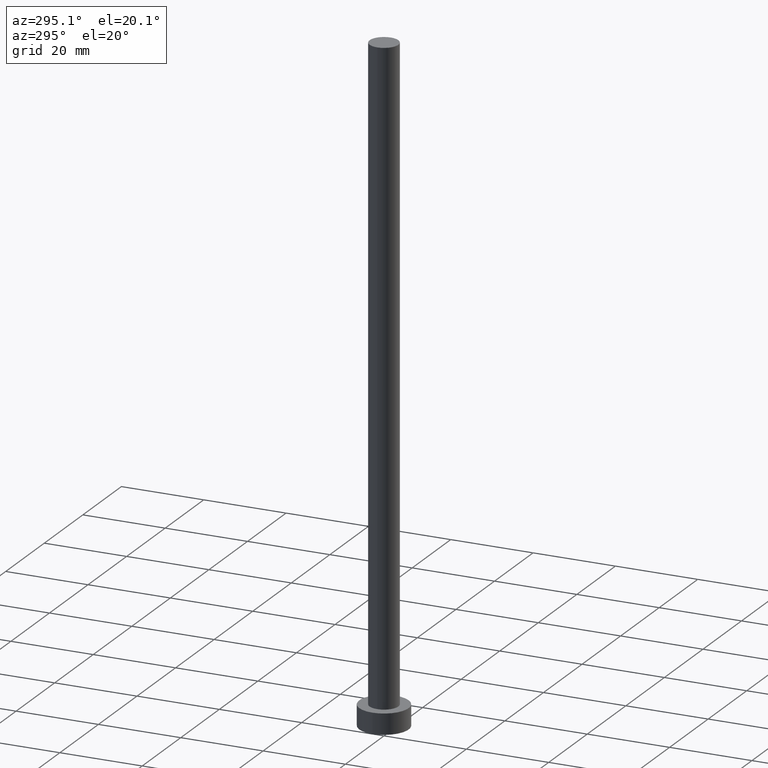
[diagram: clean part render]
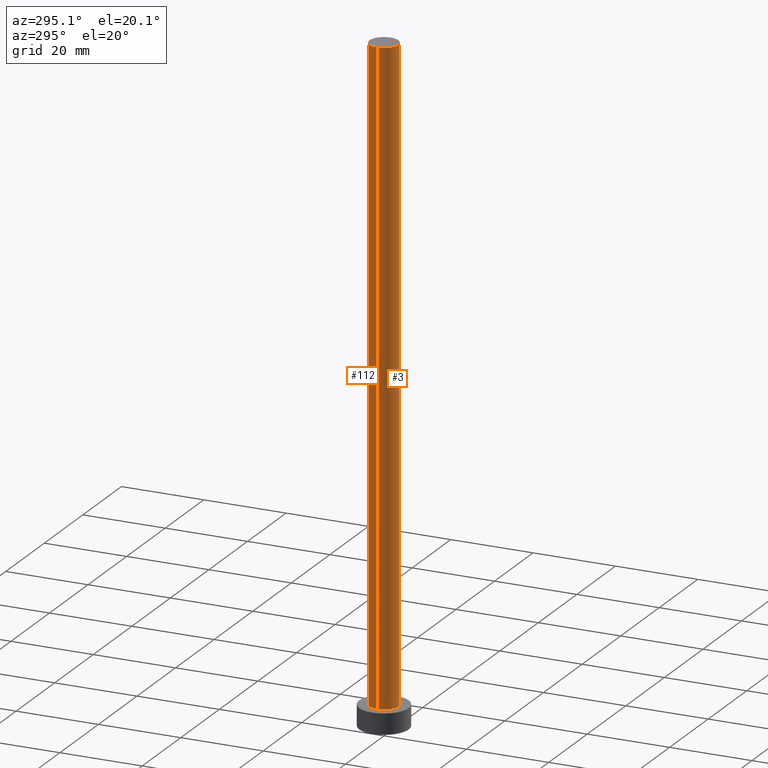
[diagram: same view with one multi-face feature highlighted, each face labeled with its STEP entity id]
A machine part, auxiliary view. The highlighted faces form ONE feature: a constant-radius fillet chain: 2 tangent blend faces with common blend radius 3.5 mm. The faces share edges in the B-rep.
Their STEP definitions:
[1] entity #112 (Cylinder):
#4 = DIRECTION ( 'NONE',  ( 0.000000000000000000, 0.000000000000000000, 1.000000000000000000 ) ) ;
#8 = CARTESIAN_POINT ( 'NONE',  ( -3.500000000000000000, 0.000000000000000000, 5.000000000000000000 ) ) ;
#9 = DIRECTION ( 'NONE',  ( -0.000000000000000000, -0.000000000000000000, -1.000000000000000000 ) ) ;
#11 = CARTESIAN_POINT ( 'NONE',  ( 3.500000000000000000, 4.286263797015736595E-16, 5.000000000000000000 ) ) ;
#25 = CARTESIAN_POINT ( 'NONE',  ( 3.500000000000000000, 4.286263797015736595E-16, 160.0000000000000000 ) ) ;
#46 = CARTESIAN_POINT ( 'NONE',  ( 0.000000000000000000, 0.000000000000000000, 160.0000000000000000 ) ) ;
#54 = VERTEX_POINT ( 'NONE', #8 ) ;
#56 = AXIS2_PLACEMENT_3D ( 'NONE', #243, #4, #141 ) ;
#60 = VERTEX_POINT ( 'NONE', #159 ) ;
#61 = AXIS2_PLACEMENT_3D ( 'NONE', #91, #114, #226 ) ;
#68 = FACE_OUTER_BOUND ( 'NONE', #216, .T. ) ;
#72 = LINE ( 'NONE', #206, #235 ) ;
#77 = ORIENTED_EDGE ( 'NONE', *, *, #142, .F. ) ;
#91 = CARTESIAN_POINT ( 'NONE',  ( 0.000000000000000000, 0.000000000000000000, 5.000000000000000000 ) ) ;
#93 = AXIS2_PLACEMENT_3D ( 'NONE', #46, #248, #160 ) ;
#99 = DIRECTION ( 'NONE',  ( -0.000000000000000000, -0.000000000000000000, -1.000000000000000000 ) ) ;
#107 = VERTEX_POINT ( 'NONE', #11 ) ;
#112 = ADVANCED_FACE ( 'NONE', ( #68 ), #224, .T. ) ;
#114 = DIRECTION ( 'NONE',  ( 0.000000000000000000, 0.000000000000000000, 1.000000000000000000 ) ) ;
#115 = CIRCLE ( 'NONE', #56, 3.500000000000000000 ) ;
#117 = EDGE_CURVE ( 'NONE', #60, #54, #143, .T. ) ;
#124 = ORIENTED_EDGE ( 'NONE', *, *, #189, .T. ) ;
#141 = DIRECTION ( 'NONE',  ( 1.000000000000000000, 0.000000000000000000, 0.000000000000000000 ) ) ;
#142 = EDGE_CURVE ( 'NONE', #220, #60, #115, .T. ) ;
#143 = LINE ( 'NONE', #150, #202 ) ;
#149 = ORIENTED_EDGE ( 'NONE', *, *, #117, .F. ) ;
#150 = CARTESIAN_POINT ( 'NONE',  ( -3.500000000000000000, 0.000000000000000000, 160.0000000000000000 ) ) ;
#159 = CARTESIAN_POINT ( 'NONE',  ( -3.500000000000000000, 0.000000000000000000, 160.0000000000000000 ) ) ;
#160 = DIRECTION ( 'NONE',  ( -1.000000000000000000, 0.000000000000000000, 0.000000000000000000 ) ) ;
#168 = CIRCLE ( 'NONE', #61, 3.500000000000000000 ) ;
#182 = EDGE_CURVE ( 'NONE', #107, #54, #168, .T. ) ;
#189 = EDGE_CURVE ( 'NONE', #220, #107, #72, .T. ) ;
#202 = VECTOR ( 'NONE', #99, 1000.000000000000000 ) ;
#206 = CARTESIAN_POINT ( 'NONE',  ( 3.500000000000000000, 4.286263797015736595E-16, 160.0000000000000000 ) ) ;
#216 = EDGE_LOOP ( 'NONE', ( #77, #124, #223, #149 ) ) ;
#220 = VERTEX_POINT ( 'NONE', #25 ) ;
#223 = ORIENTED_EDGE ( 'NONE', *, *, #182, .T. ) ;
#224 = CYLINDRICAL_SURFACE ( 'NONE', #93, 3.500000000000000000 ) ;
#226 = DIRECTION ( 'NONE',  ( 1.000000000000000000, 0.000000000000000000, 0.000000000000000000 ) ) ;
#235 = VECTOR ( 'NONE', #9, 1000.000000000000000 ) ;
#243 = CARTESIAN_POINT ( 'NONE',  ( 0.000000000000000000, 0.000000000000000000, 160.0000000000000000 ) ) ;
#248 = DIRECTION ( 'NONE',  ( -0.000000000000000000, -0.000000000000000000, -1.000000000000000000 ) ) ;
[2] entity #3 (Cylinder):
#3 = ADVANCED_FACE ( 'NONE', ( #35 ), #82, .T. ) ;
#8 = CARTESIAN_POINT ( 'NONE',  ( -3.500000000000000000, 0.000000000000000000, 5.000000000000000000 ) ) ;
#9 = DIRECTION ( 'NONE',  ( -0.000000000000000000, -0.000000000000000000, -1.000000000000000000 ) ) ;
#11 = CARTESIAN_POINT ( 'NONE',  ( 3.500000000000000000, 4.286263797015736595E-16, 5.000000000000000000 ) ) ;
#20 = ORIENTED_EDGE ( 'NONE', *, *, #189, .F. ) ;
#21 = EDGE_CURVE ( 'NONE', #60, #220, #245, .T. ) ;
#25 = CARTESIAN_POINT ( 'NONE',  ( 3.500000000000000000, 4.286263797015736595E-16, 160.0000000000000000 ) ) ;
#35 = FACE_OUTER_BOUND ( 'NONE', #255, .T. ) ;
#50 = DIRECTION ( 'NONE',  ( 1.000000000000000000, 0.000000000000000000, 0.000000000000000000 ) ) ;
#52 = CARTESIAN_POINT ( 'NONE',  ( 0.000000000000000000, 0.000000000000000000, 160.0000000000000000 ) ) ;
#54 = VERTEX_POINT ( 'NONE', #8 ) ;
#60 = VERTEX_POINT ( 'NONE', #159 ) ;
#72 = LINE ( 'NONE', #206, #235 ) ;
#82 = CYLINDRICAL_SURFACE ( 'NONE', #144, 3.500000000000000000 ) ;
#99 = DIRECTION ( 'NONE',  ( -0.000000000000000000, -0.000000000000000000, -1.000000000000000000 ) ) ;
#107 = VERTEX_POINT ( 'NONE', #11 ) ;
#116 = AXIS2_PLACEMENT_3D ( 'NONE', #156, #138, #221 ) ;
#117 = EDGE_CURVE ( 'NONE', #60, #54, #143, .T. ) ;
#133 = AXIS2_PLACEMENT_3D ( 'NONE', #205, #230, #50 ) ;
#138 = DIRECTION ( 'NONE',  ( 0.000000000000000000, 0.000000000000000000, 1.000000000000000000 ) ) ;
#140 = CIRCLE ( 'NONE', #116, 3.500000000000000000 ) ;
#143 = LINE ( 'NONE', #150, #202 ) ;
#144 = AXIS2_PLACEMENT_3D ( 'NONE', #52, #233, #214 ) ;
#150 = CARTESIAN_POINT ( 'NONE',  ( -3.500000000000000000, 0.000000000000000000, 160.0000000000000000 ) ) ;
#156 = CARTESIAN_POINT ( 'NONE',  ( 0.000000000000000000, 0.000000000000000000, 5.000000000000000000 ) ) ;
#159 = CARTESIAN_POINT ( 'NONE',  ( -3.500000000000000000, 0.000000000000000000, 160.0000000000000000 ) ) ;
#167 = EDGE_CURVE ( 'NONE', #54, #107, #140, .T. ) ;
#170 = ORIENTED_EDGE ( 'NONE', *, *, #167, .T. ) ;
#177 = ORIENTED_EDGE ( 'NONE', *, *, #117, .T. ) ;
#189 = EDGE_CURVE ( 'NONE', #220, #107, #72, .T. ) ;
#202 = VECTOR ( 'NONE', #99, 1000.000000000000000 ) ;
#205 = CARTESIAN_POINT ( 'NONE',  ( 0.000000000000000000, 0.000000000000000000, 160.0000000000000000 ) ) ;
#206 = CARTESIAN_POINT ( 'NONE',  ( 3.500000000000000000, 4.286263797015736595E-16, 160.0000000000000000 ) ) ;
#214 = DIRECTION ( 'NONE',  ( -1.000000000000000000, 0.000000000000000000, 0.000000000000000000 ) ) ;
#220 = VERTEX_POINT ( 'NONE', #25 ) ;
#221 = DIRECTION ( 'NONE',  ( 1.000000000000000000, 0.000000000000000000, 0.000000000000000000 ) ) ;
#230 = DIRECTION ( 'NONE',  ( 0.000000000000000000, 0.000000000000000000, 1.000000000000000000 ) ) ;
#233 = DIRECTION ( 'NONE',  ( -0.000000000000000000, -0.000000000000000000, -1.000000000000000000 ) ) ;
#235 = VECTOR ( 'NONE', #9, 1000.000000000000000 ) ;
#245 = CIRCLE ( 'NONE', #133, 3.500000000000000000 ) ;
#250 = ORIENTED_EDGE ( 'NONE', *, *, #21, .F. ) ;
#255 = EDGE_LOOP ( 'NONE', ( #20, #250, #177, #170 ) ) ;